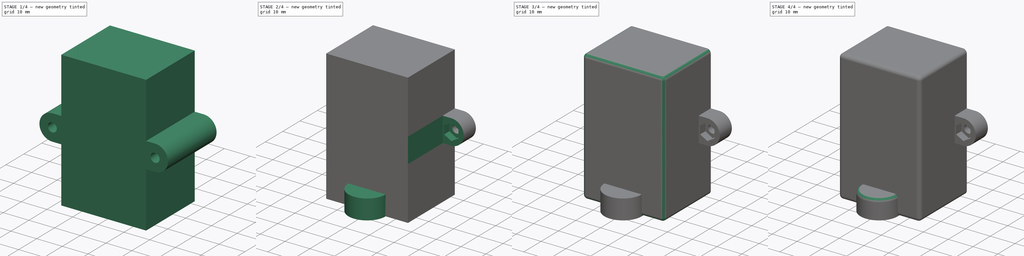
[diagram: build sequence overview — one tinted view per stage of 4, left to right]
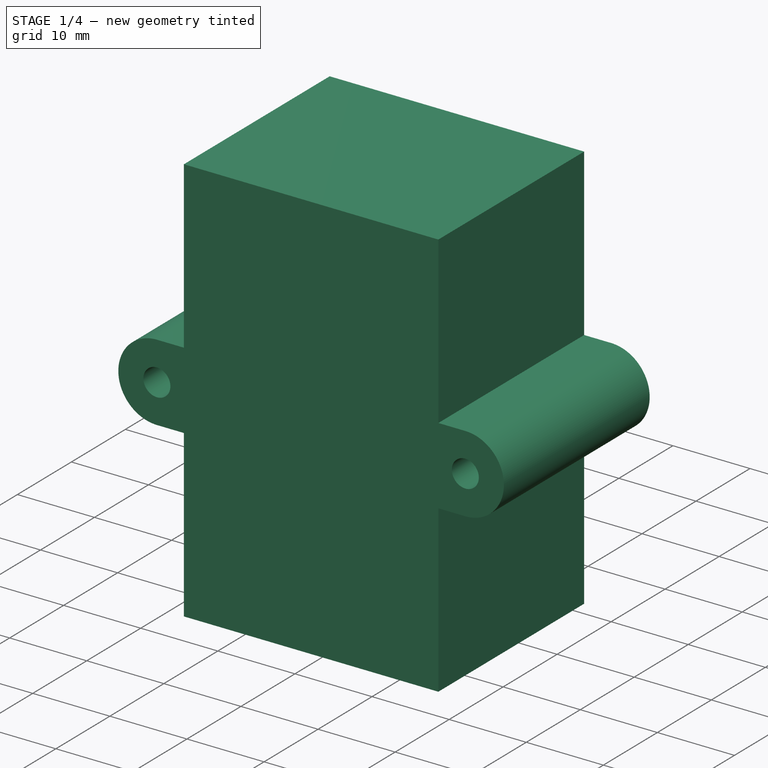
[diagram: stage 1 of 4 — iso view after this stage's code; geometry added in this stage tinted green]
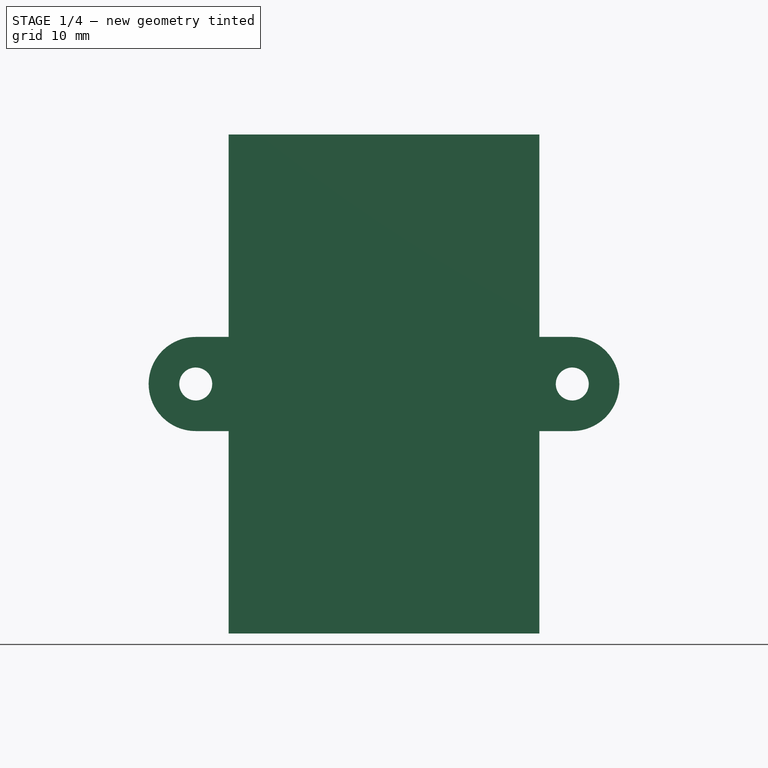
[diagram: stage 1 of 4 — front view after this stage's code; geometry added in this stage tinted green]
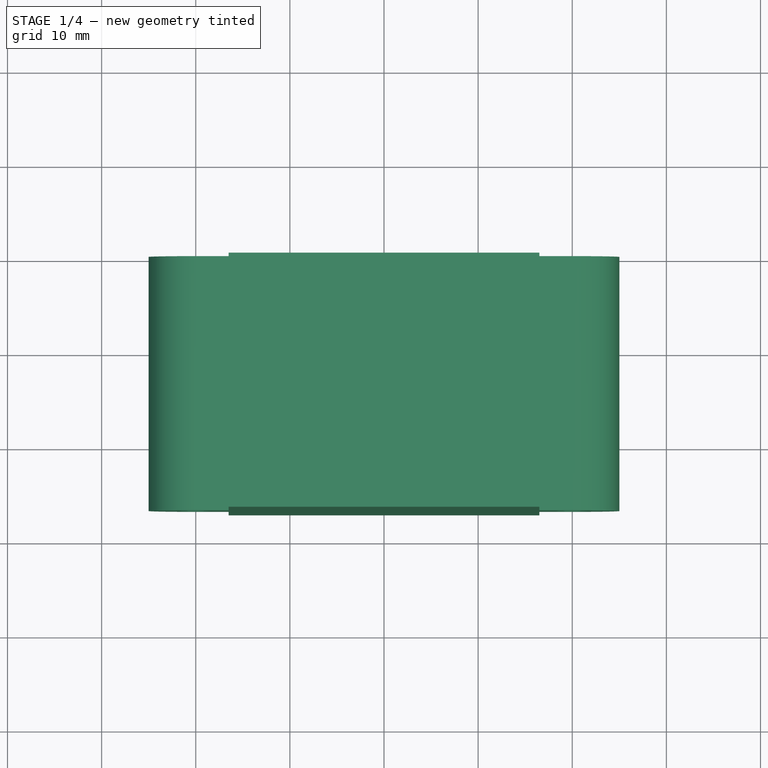
[diagram: stage 1 of 4 — top view after this stage's code; geometry added in this stage tinted green]
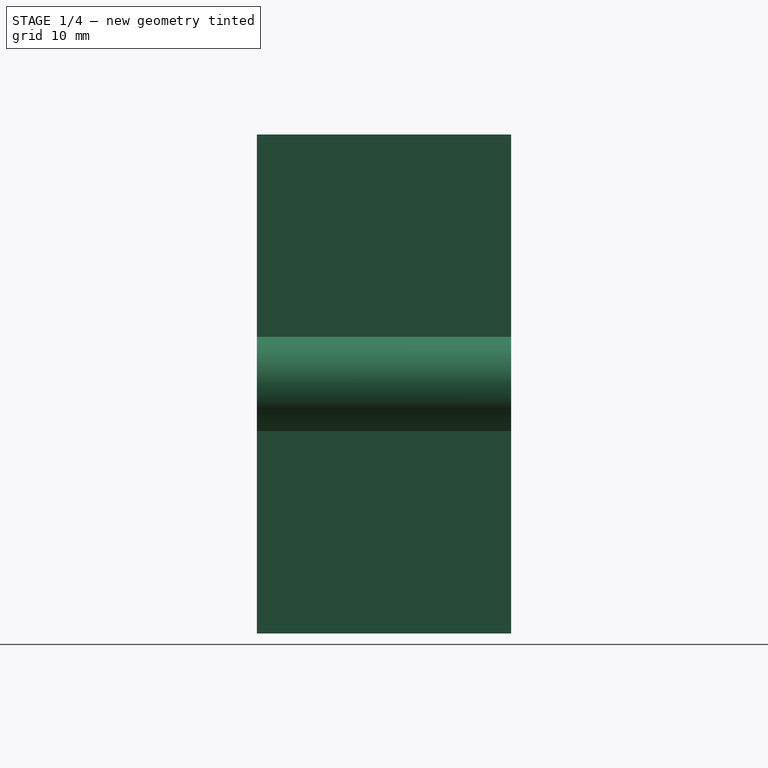
[diagram: stage 1 of 4 — right view after this stage's code; geometry added in this stage tinted green]
FCSTD DOCUMENT  (FreeCAD 0.17R13519 (Git))
Label: Inlet_IEC320_protection_box
License: All rights reserved
LicenseURL: http://en.wikipedia.org/wiki/All_rights_reserved
objects: Sketcher::SketchObject×6, PartDesign::Pocket×4, PartDesign::Fillet×4, PartDesign::Pad×2, PartDesign::Body×1
note: 23 computed .brp shape members not serialized (recipe doc carries the construction recipe); baked Part::Feature solids carry a one-line shape summary decoded from their .brp

FEATURE [Sketcher::SketchObject] Sketch
  MapMode = 5
  Placement = pos=(0,0,0) rot=(1,0,0;1.5708rad)
  Support = -> [XZ_Plane]
  sketch-geometry (18):
    g0: Circle CenterX=-20 CenterY=0 CenterZ=0 NormalX=0 NormalY=0 NormalZ=1 AngleXU=0 Radius=1.75
    g1: Circle CenterX=20 CenterY=0 CenterZ=0 NormalX=0 NormalY=0 NormalZ=1 AngleXU=0 Radius=1.75
    g2: LineSegment StartX=-16.5 StartY=26.5 StartZ=0 EndX=16.5 EndY=26.5 EndZ=0
    g3: LineSegment StartX=16.5 StartY=26.5 StartZ=0 EndX=16.5 EndY=5 EndZ=0
    g4: LineSegment StartX=16.5 StartY=-26.5 StartZ=0 EndX=-16.5 EndY=-26.5 EndZ=0
    g5: LineSegment StartX=-16.5 StartY=-26.5 StartZ=0 EndX=-16.5 EndY=-5 EndZ=0
    g6: LineSegment StartX=-16.5 StartY=5 StartZ=0 EndX=-20 EndY=5 EndZ=0
    g7: LineSegment [constr] StartX=-20 StartY=5 StartZ=0 EndX=-20 EndY=0 EndZ=0
    g8: LineSegment [constr] StartX=-20 StartY=0 StartZ=0 EndX=-20 EndY=-5 EndZ=0
    g9: LineSegment StartX=-20 StartY=-5 StartZ=0 EndX=-16.5 EndY=-5 EndZ=0
    g10: ArcOfCircle CenterX=-20 CenterY=0 CenterZ=0 NormalX=0 NormalY=0 NormalZ=1 AngleXU=0 Radius=5 StartAngle=1.5708 EndAngle=4.71239
    g11: LineSegment StartX=16.5 StartY=5 StartZ=0 EndX=20 EndY=5 EndZ=0
    g12: LineSegment [constr] StartX=20 StartY=5 StartZ=0 EndX=20 EndY=0 EndZ=0
    g13: LineSegment [constr] StartX=20 StartY=0 StartZ=0 EndX=20 EndY=-5 EndZ=0
    g14: LineSegment StartX=20 StartY=-5 StartZ=0 EndX=16.5 EndY=-5 EndZ=0
    g15: ArcOfCircle CenterX=20 CenterY=0 CenterZ=0 NormalX=0 NormalY=0 NormalZ=1 AngleXU=0 Radius=5 StartAngle=4.71239 EndAngle=7.85398
    g16: LineSegment StartX=-16.5 StartY=5 StartZ=0 EndX=-16.5 EndY=26.5 EndZ=0
    g17: LineSegment StartX=16.5 StartY=-5 StartZ=0 EndX=16.5 EndY=-26.5 EndZ=0
  constraints (51):
    c: PointOnObject(g0,g-1)
    c: PointOnObject(g1,g-1)
    c: Symmetric(g0,g1,g-1)
    c: DistanceX(g0,g1) = 40
    c: Coincident(g2,g3)
    c: Coincident(g17,g4)
    c: Coincident(g4,g5)
    c: Coincident(g16,g2)
    c: Horizontal(g2)
    c: Horizontal(g4)
    c: Vertical(g3)
    c: Vertical(g5)
    c: Equal(g0,g1)
    c: Radius(g0) = 1.75
    c: DistanceY(g5,g16) = 53
    c: DistanceX(g4,g4) = 33
    c: DistanceX(g4) = -16.5
    c: DistanceY(g4) = -26.5
    c: Horizontal(g6)
    c: Coincident(g6,g7)
    c: Coincident(g7,g0)
    c: Coincident(g7,g8)
    c: Vertical(g8)
    c: Coincident(g8,g9)
    c: Horizontal(g9)
    c: Vertical(g7)
    c: Equal(g8,g7)
    c: Coincident(g10,g0)
    c: Coincident(g10,g6)
    c: Coincident(g10,g8)
    c: Horizontal(g11)
    c: Coincident(g11,g12)
    c: Coincident(g12,g1)
    c: Vertical(g12)
    c: Coincident(g12,g13)
    c: Vertical(g13)
    c: Coincident(g13,g14)
    c: Horizontal(g14)
    c: Equal(g11,g14)
    c: Equal(g14,g9)
    c: Coincident(g15,g1)
    c: Coincident(g15,g11)
    c: Coincident(g15,g13)
    c: Equal(g10,g15)
    c: Radius(g10) = 5
    c: PointOnObject(g5,g9)
    c: Coincident(g16,g6)
    c: Tangent(g5,g16)
    c: Coincident(g3,g11)
    c: Coincident(g17,g14)
    c: Tangent(g3,g17)
FEATURE [PartDesign::Pad] Pad
  Length = 27
  Length2 = 100
  Placement = pos=(0,0,0) rot=(1,0,0;1.5708rad)
  Profile = -> Sketch
  Type = 0
FEATURE [Sketcher::SketchObject] Sketch001
  MapMode = 5
  Placement = pos=(0,0,0) rot=(-1,0,0;1.5708rad)
  Support = -> [Pad]
  sketch-geometry (4):
    g0: LineSegment StartX=-14.5 StartY=24.5 StartZ=0 EndX=14.5 EndY=24.5 EndZ=0
    g1: LineSegment StartX=14.5 StartY=24.5 StartZ=0 EndX=14.5 EndY=-24.5 EndZ=0
    g2: LineSegment StartX=14.5 StartY=-24.5 StartZ=0 EndX=-14.5 EndY=-24.5 EndZ=0
    g3: LineSegment StartX=-14.5 StartY=-24.5 StartZ=0 EndX=-14.5 EndY=24.5 EndZ=0
  constraints (12):
    c: Coincident(g0,g1)
    c: Coincident(g1,g2)
    c: Coincident(g2,g3)
    c: Coincident(g3,g0)
    c: Horizontal(g0)
    c: Horizontal(g2)
    c: Vertical(g1)
    c: Vertical(g3)
    c: DistanceX(g0,g0) = 29
    c: DistanceY(g3,g3) = 49
    c: Symmetric(g0,g0,g-2)
    c: Symmetric(g0,g2,g-1)
FEATURE [PartDesign::Pocket] Pocket
  BaseFeature = -> Pad
  Length = 25
  Length2 = 100
  Placement = pos=(0,0,0) rot=(1,0,0;1.5708rad)
  Profile = -> Sketch001
  Type = 0
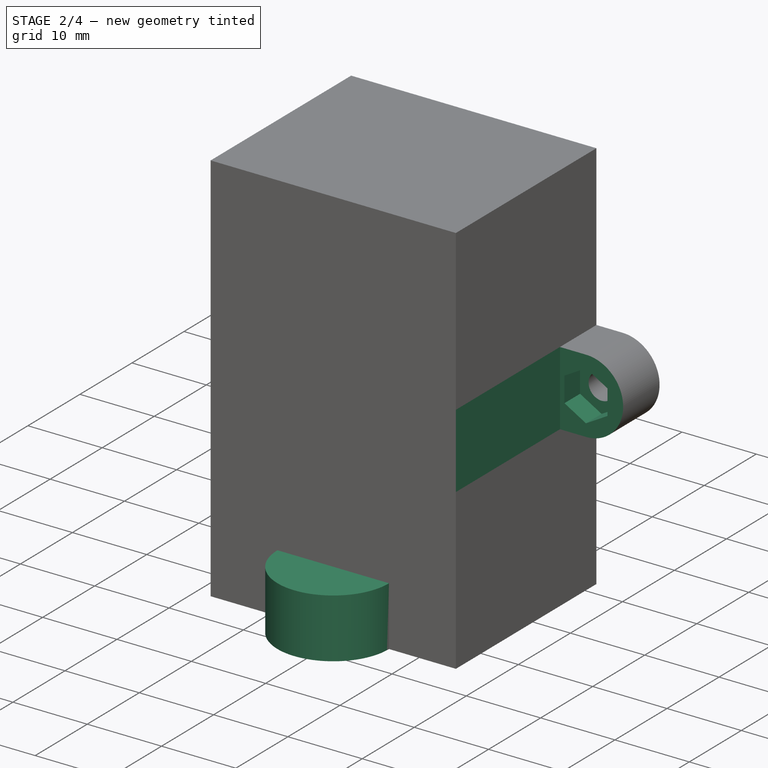
[diagram: stage 2 of 4 — iso view after this stage's code; geometry added in this stage tinted green]
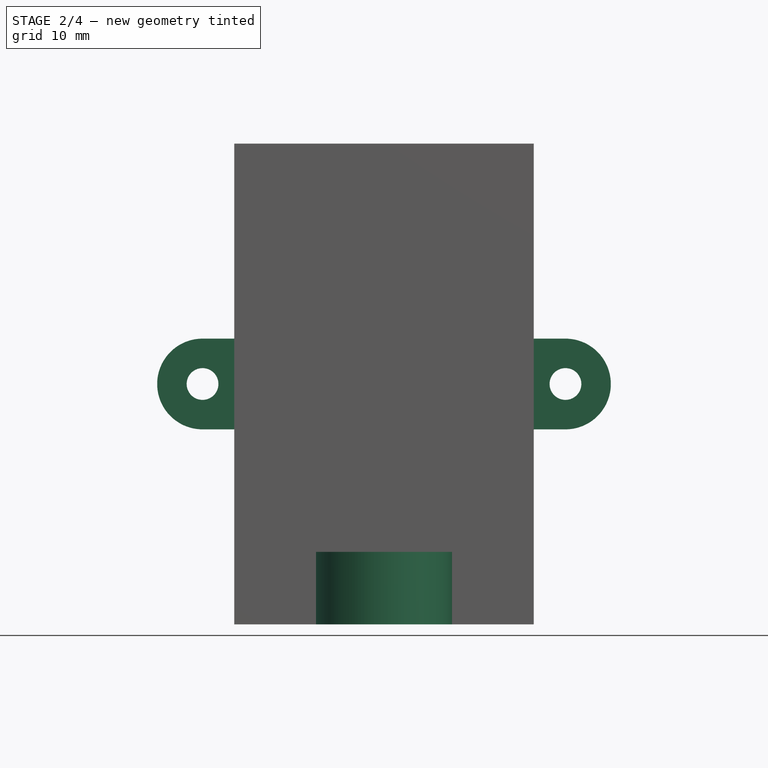
[diagram: stage 2 of 4 — front view after this stage's code; geometry added in this stage tinted green]
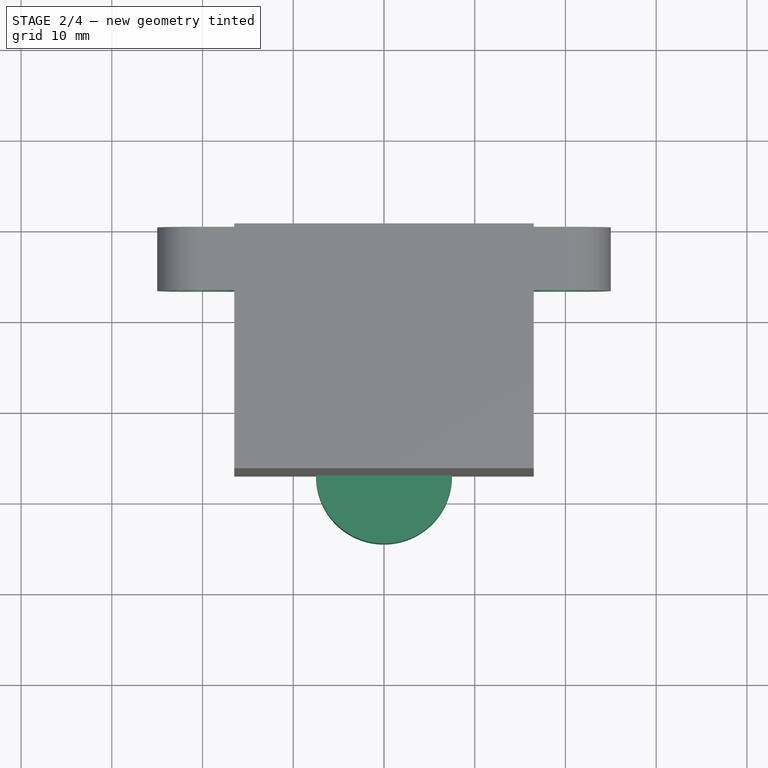
[diagram: stage 2 of 4 — top view after this stage's code; geometry added in this stage tinted green]
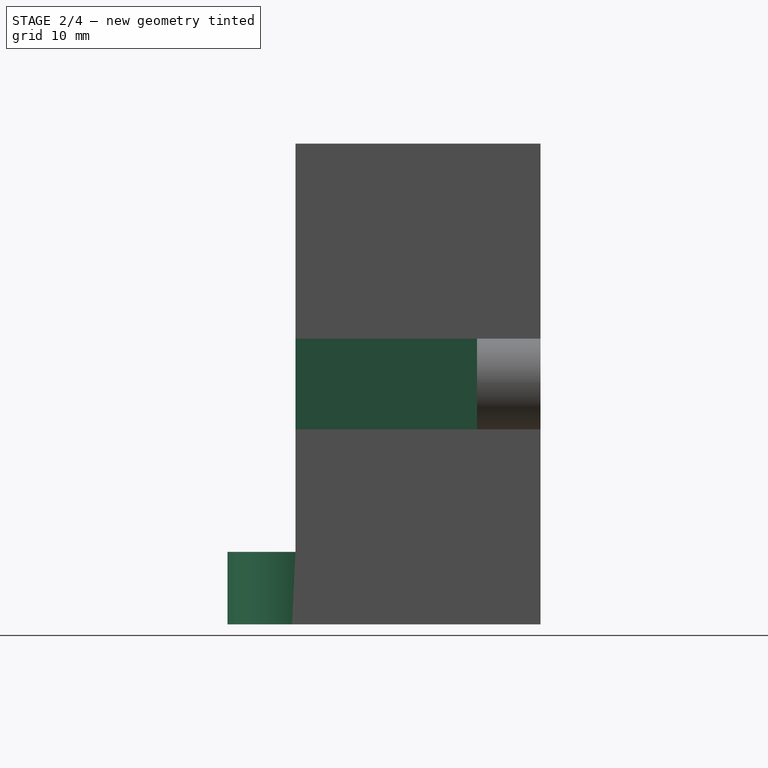
[diagram: stage 2 of 4 — right view after this stage's code; geometry added in this stage tinted green]
FEATURE [Sketcher::SketchObject] Sketch002
  MapMode = 5
  Placement = pos=(0,-27,0) rot=(1,0,0;1.5708rad)
  Support = -> [Pocket]
  sketch-geometry (8):
    g0: LineSegment StartX=-25.5 StartY=5 StartZ=0 EndX=-16.5 EndY=5 EndZ=0
    g1: LineSegment StartX=-16.5 StartY=5 StartZ=0 EndX=-16.5 EndY=-5 EndZ=0
    g2: LineSegment StartX=-16.5 StartY=-5 StartZ=0 EndX=-25.5 EndY=-5 EndZ=0
    g3: LineSegment StartX=-25.5 StartY=-5 StartZ=0 EndX=-25.5 EndY=5 EndZ=0
    g4: LineSegment StartX=16.5 StartY=5 StartZ=0 EndX=25.5 EndY=5 EndZ=0
    g5: LineSegment StartX=25.5 StartY=5 StartZ=0 EndX=25.5 EndY=-5 EndZ=0
    g6: LineSegment StartX=25.5 StartY=-5 StartZ=0 EndX=16.5 EndY=-5 EndZ=0
    g7: LineSegment StartX=16.5 StartY=-5 StartZ=0 EndX=16.5 EndY=5 EndZ=0
  constraints (23):
    c: Coincident(g0,g1)
    c: Coincident(g1,g2)
    c: Coincident(g2,g3)
    c: Coincident(g3,g0)
    c: Horizontal(g0)
    c: Horizontal(g2)
    c: Vertical(g1)
    c: Vertical(g3)
    c: Coincident(g4,g5)
    c: Coincident(g5,g6)
    c: Coincident(g6,g7)
    c: Coincident(g7,g4)
    c: Horizontal(g4)
    c: Horizontal(g6)
    c: Vertical(g5)
    c: Vertical(g7)
    c: Equal(g0,g4)
    c: Equal(g1,g7)
    c: Symmetric(g1,g0,g-1)
    c: Symmetric(g1,g6,g-2)
    c: DistanceX(g4) = 16.5
    c: DistanceY(g4) = 5
    c: DistanceX(g0,g0) = 9
FEATURE [PartDesign::Pocket] Pocket001
  BaseFeature = -> Pocket
  Length = 20
  Length2 = 100
  Placement = pos=(0,0,0) rot=(1,0,0;1.5708rad)
  Profile = -> Sketch002
  Type = 0
FEATURE [Sketcher::SketchObject] Sketch003
  MapMode = 5
  Placement = pos=(0,-7,0) rot=(1,0,0;1.5708rad)
  Support = -> [Pocket001]
  sketch-geometry (14):
    g0: LineSegment StartX=-17.1 StartY=1.67432 StartZ=0 EndX=-20 EndY=3.34863 EndZ=0
    g1: LineSegment StartX=-20 StartY=3.34863 StartZ=0 EndX=-22.9 EndY=1.67432 EndZ=0
    g2: LineSegment StartX=-22.9 StartY=1.67432 StartZ=0 EndX=-22.9 EndY=-1.67432 EndZ=0
    g3: LineSegment StartX=-22.9 StartY=-1.67432 StartZ=0 EndX=-20 EndY=-3.34863 EndZ=0
    g4: LineSegment StartX=-20 StartY=-3.34863 StartZ=0 EndX=-17.1 EndY=-1.67432 EndZ=0
    g5: LineSegment StartX=-17.1 StartY=-1.67432 StartZ=0 EndX=-17.1 EndY=1.67432 EndZ=0
    g6: Circle [constr] CenterX=-20 CenterY=0 CenterZ=0 NormalX=0 NormalY=0 NormalZ=1 AngleXU=0 Radius=3.34863
    g7: LineSegment StartX=22.9 StartY=1.67432 StartZ=0 EndX=20 EndY=3.34863 EndZ=0
    g8: LineSegment StartX=20 StartY=3.34863 StartZ=0 EndX=17.1 EndY=1.67432 EndZ=0
    g9: LineSegment StartX=17.1 StartY=1.67432 StartZ=0 EndX=17.1 EndY=-1.67432 EndZ=0
    g10: LineSegment StartX=17.1 StartY=-1.67432 StartZ=0 EndX=20 EndY=-3.34863 EndZ=0
    g11: LineSegment StartX=20 StartY=-3.34863 StartZ=0 EndX=22.9 EndY=-1.67432 EndZ=0
    g12: LineSegment StartX=22.9 StartY=-1.67432 StartZ=0 EndX=22.9 EndY=1.67432 EndZ=0
    g13: Circle [constr] CenterX=20 CenterY=0 CenterZ=0 NormalX=0 NormalY=0 NormalZ=1 AngleXU=0 Radius=3.34863
  constraints (34):
    c: Coincident(g0,g1)
    c: Coincident(g1,g2)
    c: Coincident(g2,g3)
    c: Coincident(g3,g4)
    c: Coincident(g4,g5)
    c: Coincident(g5,g0)
    c: Equal(g0, g1-g5) x5
    c: PointOnObject(g0,g6)
    c: PointOnObject(g1,g6)
    c: PointOnObject(g2,g6)
    c: PointOnObject(g3,g6)
    c: PointOnObject(g4,g6)
    c: PointOnObject(g5,g6)
    c: PointOnObject(g6,g-1)
    c: Coincident(g7,g8)
    c: Coincident(g8,g9)
    c: Coincident(g9,g10)
    c: Coincident(g10,g11)
    c: Coincident(g11,g12)
    c: Coincident(g12,g7)
    c: Equal(g7, g8-g12) x5
    c: PointOnObject(g7,g13)
    c: PointOnObject(g8,g13)
    c: PointOnObject(g9,g13)
    c: PointOnObject(g10,g13)
    c: PointOnObject(g11,g13)
    c: PointOnObject(g12,g13)
    c: PointOnObject(g13,g-1)
    c: Vertical(g5)
    c: Vertical(g9)
    c: DistanceX(g1,g0) = 5.8
    c: Equal(g6,g13)
    c: DistanceX(g6,g13) = 40
    c: Symmetric(g6,g13,g-2)
FEATURE [PartDesign::Pocket] Pocket002
  BaseFeature = -> Pocket001
  Length = 3
  Length2 = 100
  Placement = pos=(0,0,0) rot=(1,0,0;1.5708rad)
  Profile = -> Sketch003
  Type = 0
FEATURE [Sketcher::SketchObject] Sketch004
  MapMode = 5
  Placement = pos=(0,0,-26.5) rot=(1,0,0;3.14159rad)
  Support = -> [Pocket002]
  sketch-geometry (6):
    g0: LineSegment StartX=-7.5 StartY=27 StartZ=0 EndX=7.5 EndY=27 EndZ=0
    g1: LineSegment StartX=7.5 StartY=27 StartZ=0 EndX=7.5 EndY=27.01 EndZ=0
    g2: LineSegment StartX=0.01 StartY=34.5 StartZ=0 EndX=-0.01 EndY=34.5 EndZ=0
    g3: LineSegment StartX=-7.5 StartY=27.01 StartZ=0 EndX=-7.5 EndY=27 EndZ=0
    g4: ArcOfCircle CenterX=-0.01 CenterY=27.01 CenterZ=0 NormalX=0 NormalY=0 NormalZ=1 AngleXU=0 Radius=7.49 StartAngle=1.5708 EndAngle=3.14159
    g5: ArcOfCircle CenterX=0.01 CenterY=27.01 CenterZ=0 NormalX=0 NormalY=0 NormalZ=1 AngleXU=0 Radius=7.49 StartAngle=0 EndAngle=1.5708
  constraints (16):
    c: Coincident(g0,g1)
    c: Coincident(g3,g0)
    c: Horizontal(g0)
    c: Horizontal(g2)
    c: Vertical(g1)
    c: Vertical(g3)
    c: Symmetric(g0,g0,g-2)
    c: DistanceY(g0) = 27
    c: DistanceX(g0,g0) = 15
    c: Tangent(g3,g4) = -1.5708
    c: Tangent(g2,g4) = -1.5708
    c: Tangent(g2,g5) = -1.5708
    c: Tangent(g1,g5) = -1.5708
    c: Equal(g4,g5)
    c: Radius(g4) = 7.49
    c: DistanceY(g0,g2) = 7.5
FEATURE [PartDesign::Pad] Pad001
  BaseFeature = -> Pocket002
  Length = 8
  Length2 = 100
  Placement = pos=(0,0,0) rot=(1,0,0;1.5708rad)
  Profile = -> Sketch004
  Reversed = true
  Type = 0
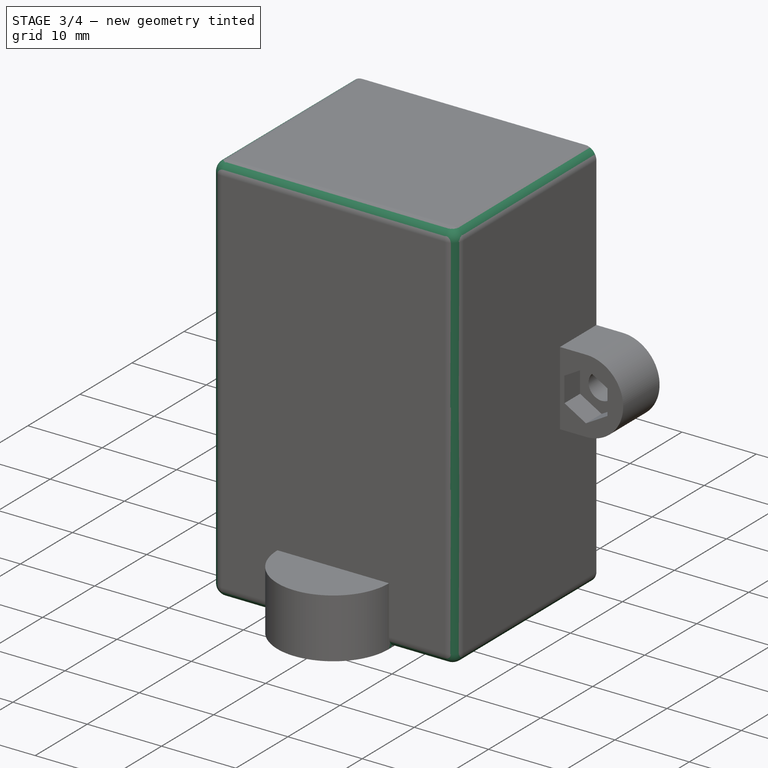
[diagram: stage 3 of 4 — iso view after this stage's code; geometry added in this stage tinted green]
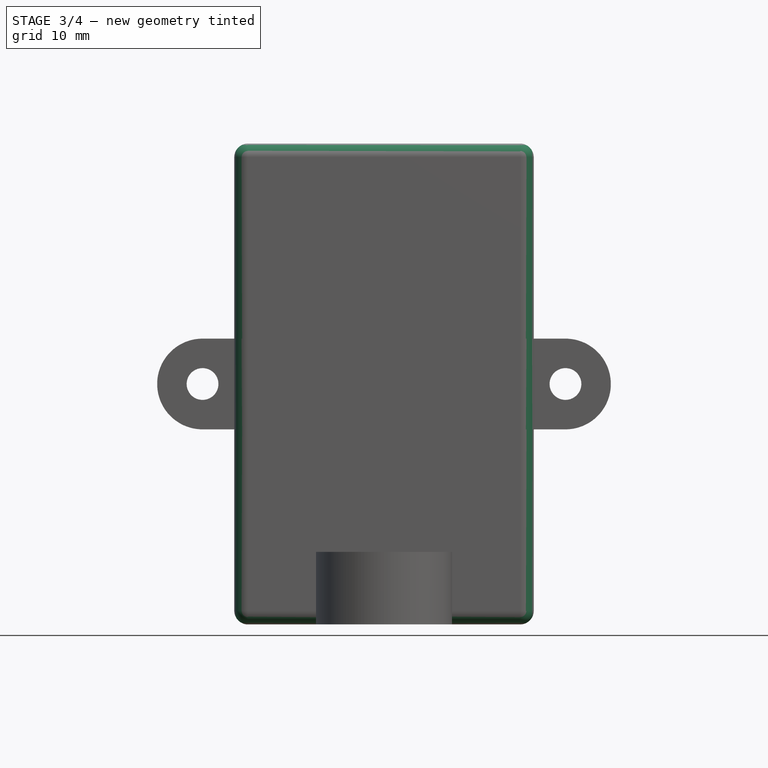
[diagram: stage 3 of 4 — front view after this stage's code; geometry added in this stage tinted green]
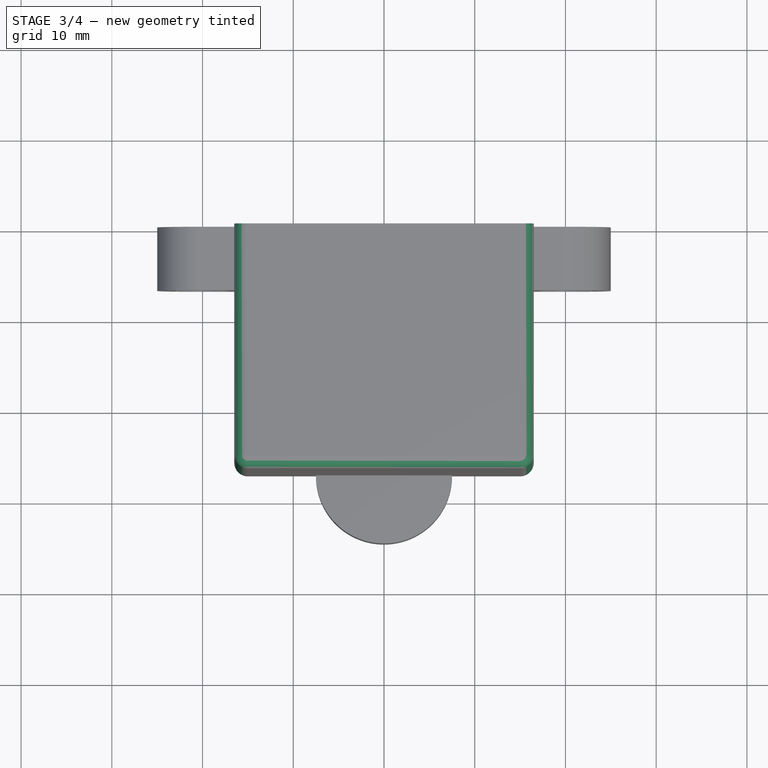
[diagram: stage 3 of 4 — top view after this stage's code; geometry added in this stage tinted green]
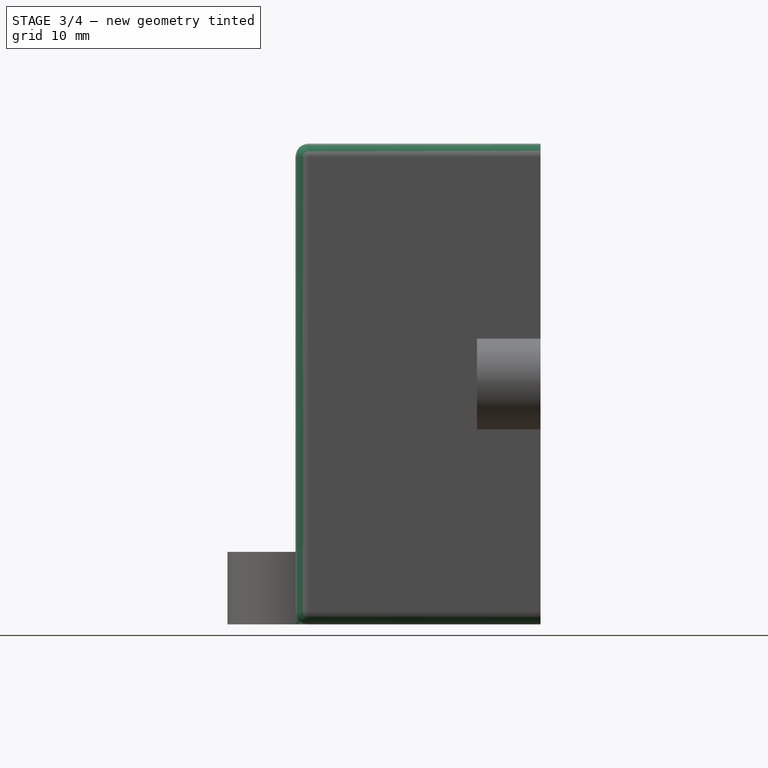
[diagram: stage 3 of 4 — right view after this stage's code; geometry added in this stage tinted green]
FEATURE [Sketcher::SketchObject] Sketch005
  MapMode = 5
  Placement = pos=(0,0,-26.5) rot=(1,0,0;3.14159rad)
  Support = -> [Pad001]
  sketch-geometry (5):
    g0: LineSegment StartX=-5.5 StartY=0 StartZ=0 EndX=5.5 EndY=0 EndZ=0
    g1: LineSegment StartX=5.5 StartY=0 StartZ=0 EndX=5.5 EndY=27 EndZ=0
    g2: LineSegment [constr] StartX=5.5 StartY=27 StartZ=0 EndX=-5.5 EndY=27 EndZ=0
    g3: LineSegment StartX=-5.5 StartY=27 StartZ=0 EndX=-5.5 EndY=0 EndZ=0
    g4: ArcOfCircle CenterX=0 CenterY=27 CenterZ=0 NormalX=0 NormalY=0 NormalZ=1 AngleXU=0 Radius=5.5 StartAngle=0 EndAngle=3.14159
  constraints (16):
    c: Coincident(g0,g1)
    c: Coincident(g1,g2)
    c: Coincident(g2,g3)
    c: Coincident(g3,g0)
    c: Horizontal(g0)
    c: Horizontal(g2)
    c: Vertical(g1)
    c: Vertical(g3)
    c: PointOnObject(g0,g-1)
    c: Symmetric(g0,g0,g-2)
    c: DistanceY(g1,g1) = 27
    c: DistanceX(g0,g0) = 11
    c: PointOnObject(g4,g-2)
    c: Coincident(g4,g2)
    c: Coincident(g4,g1)
    c: PointOnObject(g4,g2)
FEATURE [PartDesign::Pocket] Pocket003
  BaseFeature = -> Pad001
  Length = 6
  Length2 = 100
  Placement = pos=(0,0,0) rot=(1,0,0;1.5708rad)
  Profile = -> Sketch005
  Type = 0
FEATURE [PartDesign::Fillet] Fillet
  Base = -> Pocket003 [Edge32,Edge4,Edge53,Edge75]
  BaseFeature = -> Pocket003
  Placement = pos=(0,0,0) rot=(1,0,0;1.5708rad)
  Radius = 1.5
FEATURE [PartDesign::Fillet] Fillet001
  Base = -> Fillet [Edge35]
  BaseFeature = -> Fillet
  Placement = pos=(0,0,0) rot=(1,0,0;1.5708rad)
  Radius = 1.5
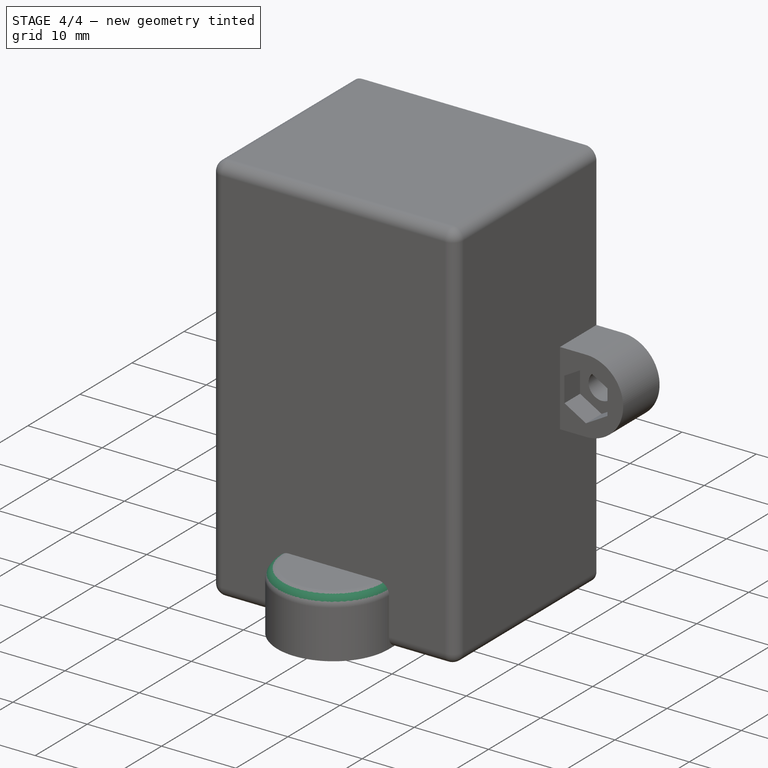
[diagram: stage 4 of 4 — iso view after this stage's code; geometry added in this stage tinted green]
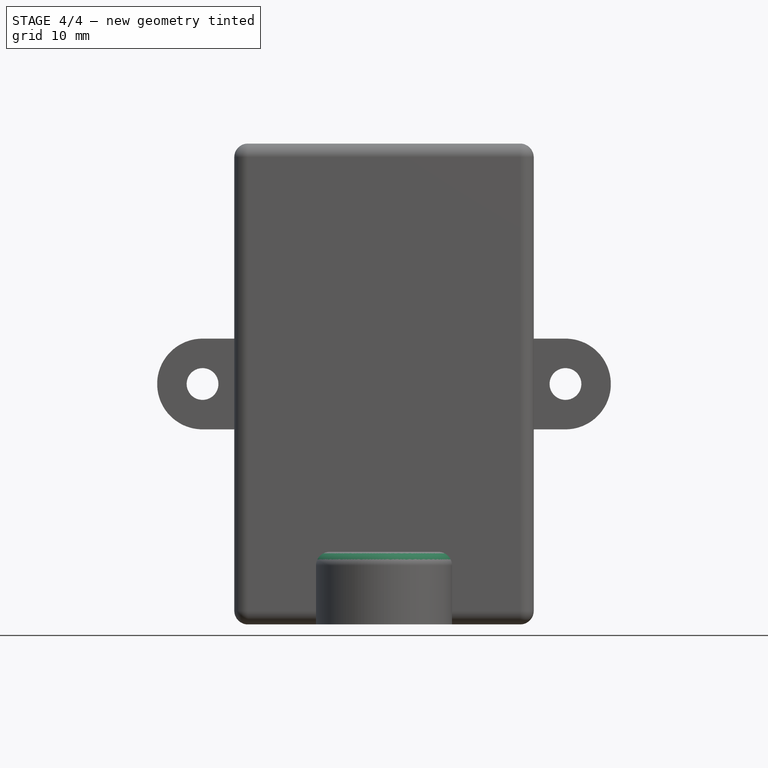
[diagram: stage 4 of 4 — front view after this stage's code; geometry added in this stage tinted green]
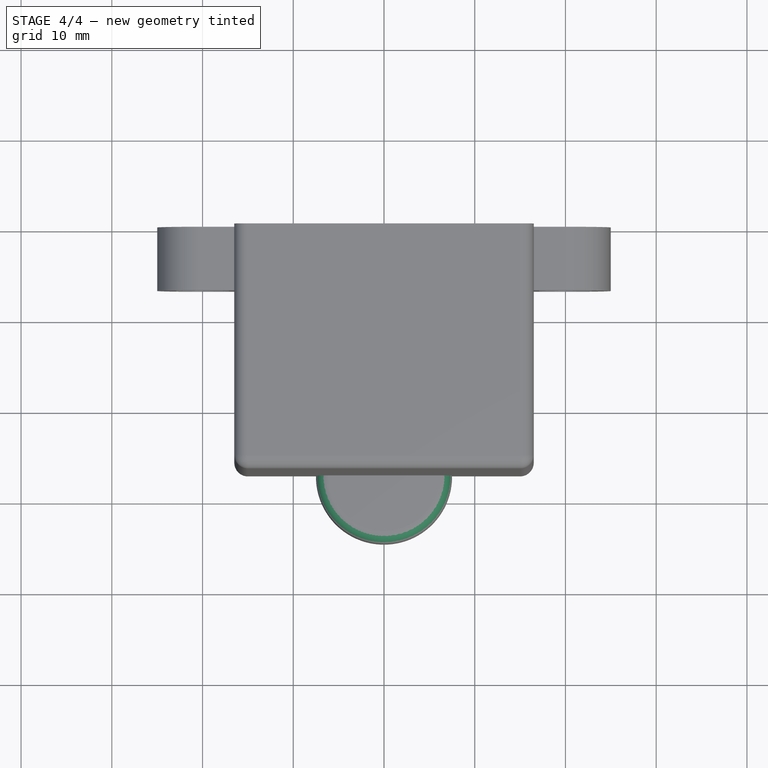
[diagram: stage 4 of 4 — top view after this stage's code; geometry added in this stage tinted green]
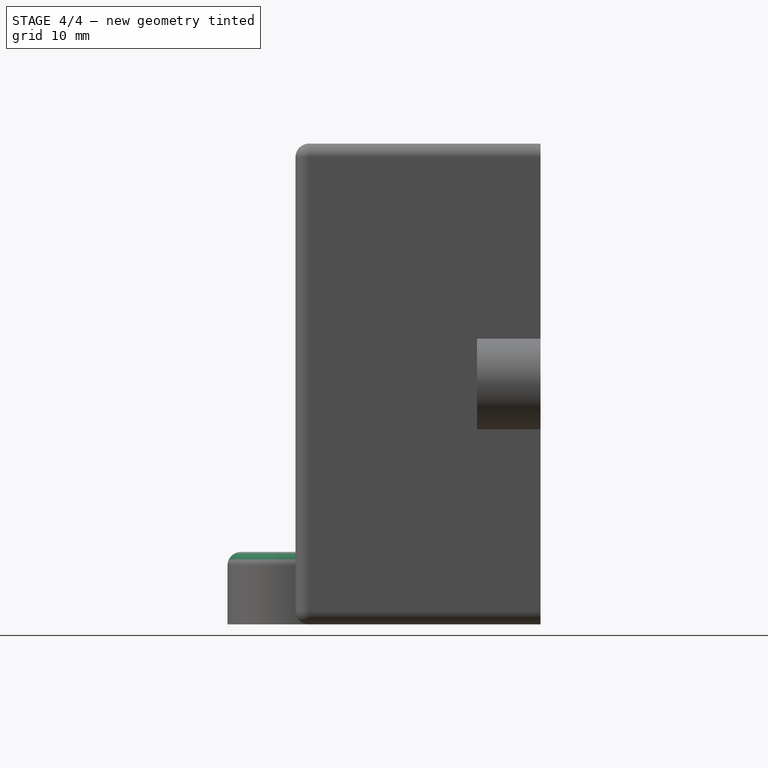
[diagram: stage 4 of 4 — right view after this stage's code; geometry added in this stage tinted green]
FEATURE [PartDesign::Fillet] Fillet002
  Base = -> Fillet001 [Edge141,Edge125]
  BaseFeature = -> Fillet001
  Placement = pos=(0,0,0) rot=(1,0,0;1.5708rad)
  Radius = 1.5
FEATURE [PartDesign::Fillet] Fillet003
  Base = -> Fillet002 [Edge161,Edge156,Edge157,Edge159]
  BaseFeature = -> Fillet002
  Placement = pos=(0,0,0) rot=(1,0,0;1.5708rad)
  Radius = 1
FEATURE [PartDesign::Body] Body
  Group = -> [Sketch,Pad,Sketch001,Pocket,Sketch002,Pocket001,Sketch003,Pocket002,Sketch004,Pad001,Sketch005,Pocket003,Fillet,Fillet001,Fillet002,Fillet003]
  Origin = -> Origin
  Tip = -> Fillet003
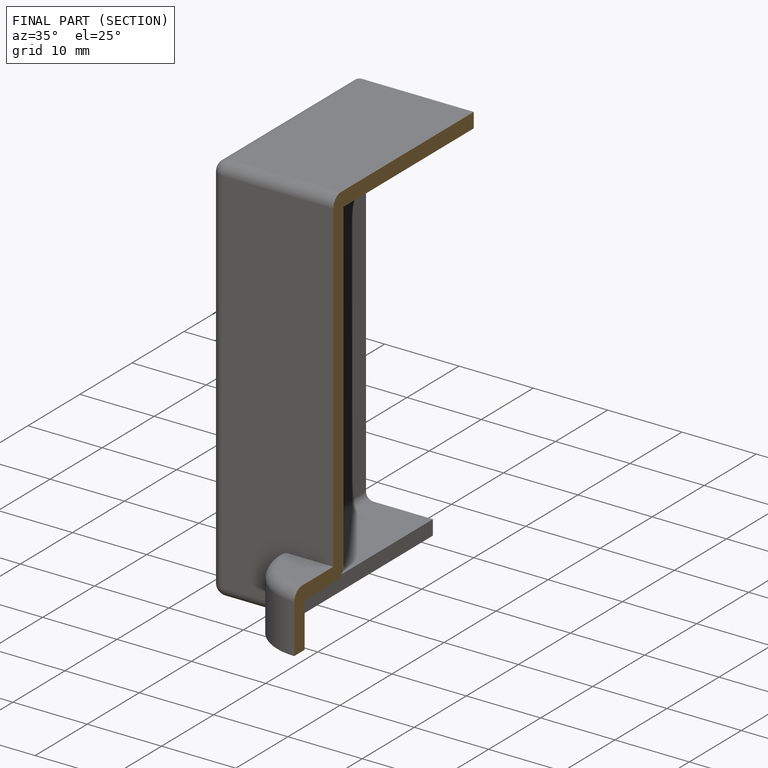
[diagram: finished part — half-section view (interior)]
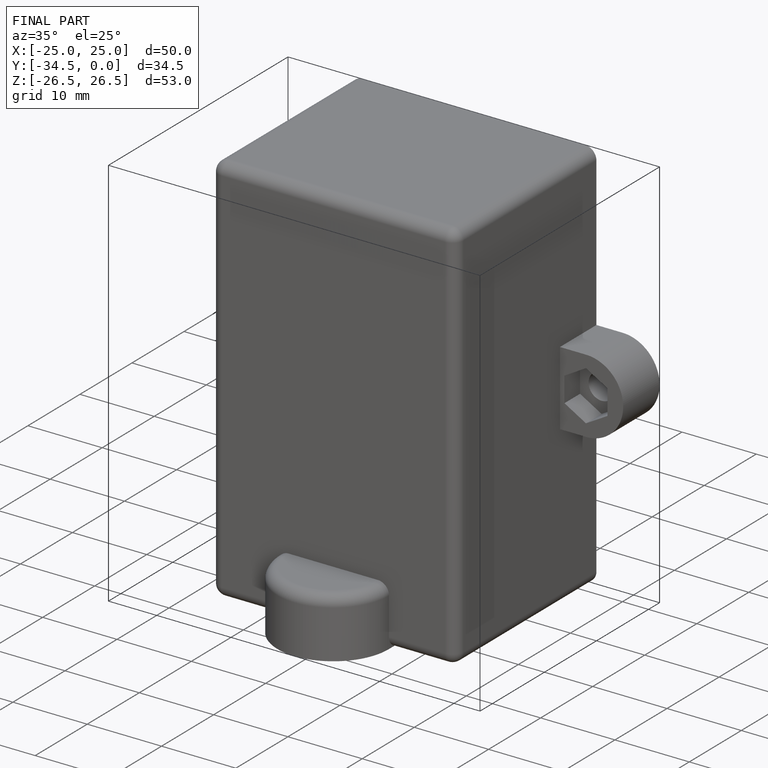
[diagram: finished part — iso view with bounding-box wireframe]
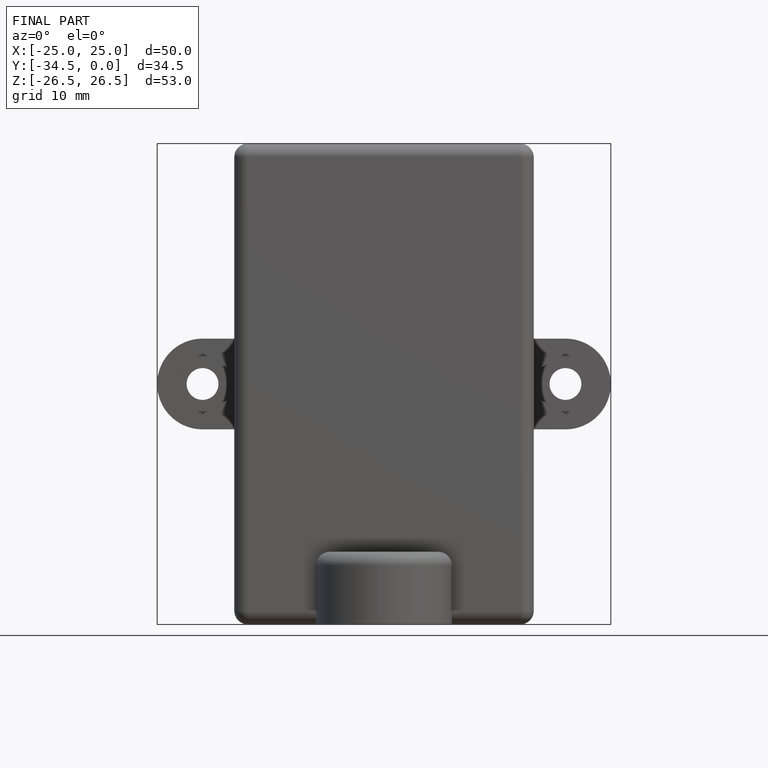
[diagram: finished part — front view with bounding-box wireframe]
